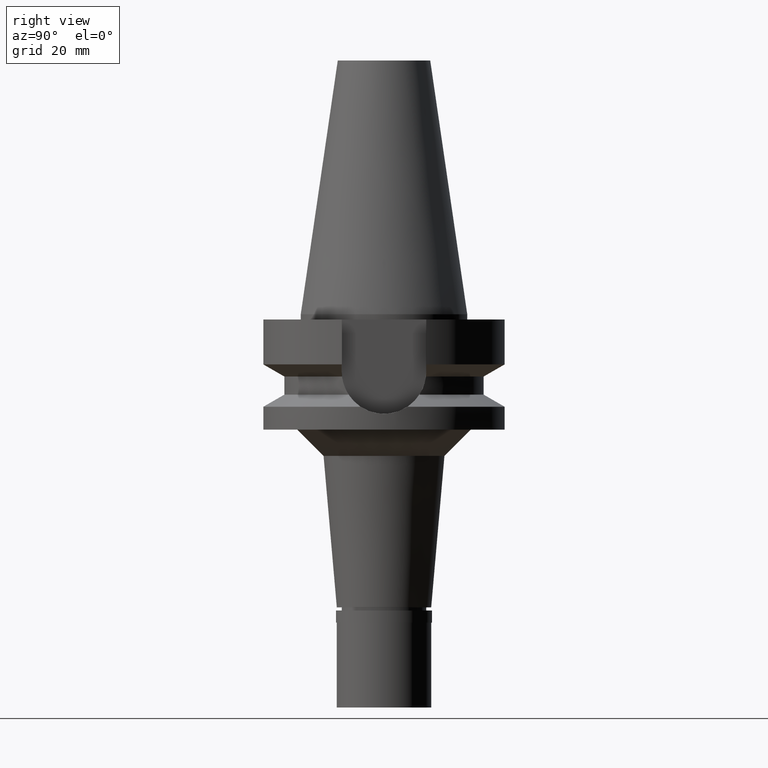
[diagram: clean part render]
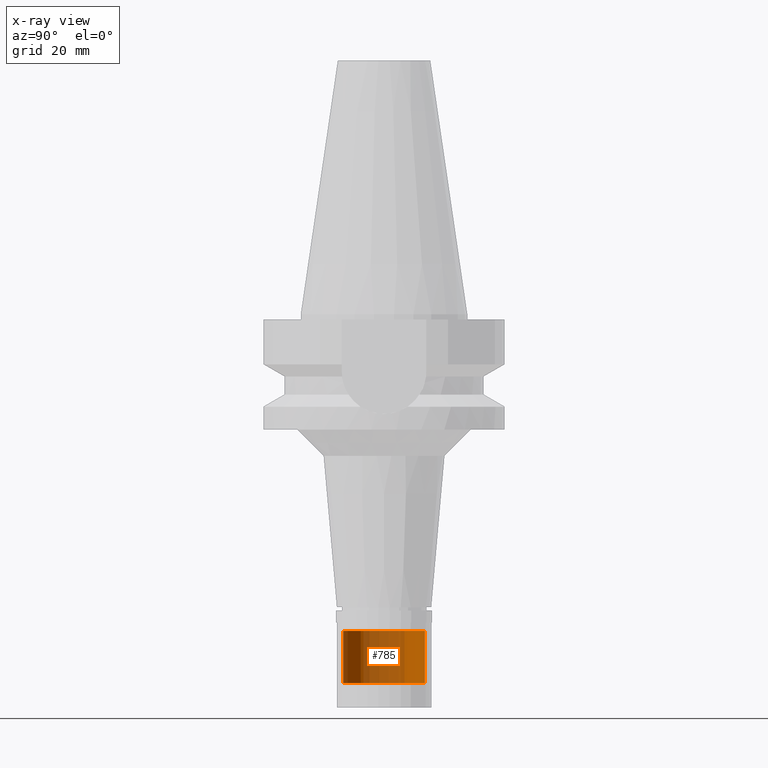
[diagram: x-ray — body ghosted, one internal face saturated and labeled with its STEP entity id]
A machine part, right view, then the same camera in x-ray: the body is ghosted and one INTERNAL B-rep face — a face not visible from any outside direction — is saturated and labeled: STEP entity #785.
In plain terms, the highlighted cylindrical surface (partial cylindrical patch) has radius 7.8 mm, axis along (0, 0, -1).
Its self-contained STEP definition (entity closure, byte-faithful):
#10 = ORIENTED_EDGE ( 'NONE', *, *, #879, .T. ) ;
#43 = CARTESIAN_POINT ( 'NONE',  ( 0.0000000000000000000, -7.799999999999999822, -70.40000000000000568 ) ) ;
#151 = CARTESIAN_POINT ( 'NONE',  ( 0.0000000000000000000, -7.799999999999999822, -60.40000000000000568 ) ) ;
#178 = LINE ( 'NONE', #410, #1087 ) ;
#318 = DIRECTION ( 'NONE',  ( 0.0000000000000000000, -1.000000000000000000, 0.0000000000000000000 ) ) ;
#345 = VERTEX_POINT ( 'NONE', #1421 ) ;
#359 = CARTESIAN_POINT ( 'NONE',  ( 0.0000000000000000000, 1.890119869803999835E-14, 54.33999999999999631 ) ) ;
#410 = CARTESIAN_POINT ( 'NONE',  ( 0.0000000000000000000, -7.799999999999999822, -60.40000000000000568 ) ) ;
#459 = DIRECTION ( 'NONE',  ( 0.0000000000000000000, 0.0000000000000000000, -1.000000000000000000 ) ) ;
#464 = DIRECTION ( 'NONE',  ( 0.0000000000000000000, 0.0000000000000000000, -1.000000000000000000 ) ) ;
#785 = ADVANCED_FACE ( 'NONE', ( #1498 ), #2404, .T. ) ;
#879 = EDGE_CURVE ( 'NONE', #1616, #2922, #2467, .T. ) ;
#893 = AXIS2_PLACEMENT_3D ( 'NONE', #359, #1742, #318 ) ;
#897 = AXIS2_PLACEMENT_3D ( 'NONE', #1843, #2081, #935 ) ;
#935 = DIRECTION ( 'NONE',  ( 0.0000000000000000000, 1.000000000000000000, 0.0000000000000000000 ) ) ;
#995 = CIRCLE ( 'NONE', #897, 7.799999999999999822 ) ;
#1087 = VECTOR ( 'NONE', #459, 1000.000000000000000 ) ;
#1113 = CARTESIAN_POINT ( 'NONE',  ( 0.0000000000000000000, 7.799999999999999822, -60.40000000000000568 ) ) ;
#1194 = EDGE_CURVE ( 'NONE', #345, #2552, #995, .T. ) ;
#1399 = ORIENTED_EDGE ( 'NONE', *, *, #1194, .T. ) ;
#1421 = CARTESIAN_POINT ( 'NONE',  ( 0.0000000000000000000, 7.799999999999999822, -70.40000000000000568 ) ) ;
#1498 = FACE_OUTER_BOUND ( 'NONE', #2747, .T. ) ;
#1616 = VERTEX_POINT ( 'NONE', #151 ) ;
#1625 = CARTESIAN_POINT ( 'NONE',  ( 0.0000000000000000000, 1.890119869803999835E-14, -60.40000000000000568 ) ) ;
#1742 = DIRECTION ( 'NONE',  ( 0.0000000000000000000, 0.0000000000000000000, -1.000000000000000000 ) ) ;
#1804 = CARTESIAN_POINT ( 'NONE',  ( 0.0000000000000000000, 7.799999999999999822, -60.40000000000000568 ) ) ;
#1843 = CARTESIAN_POINT ( 'NONE',  ( 0.0000000000000000000, 1.890119869803999835E-14, -70.40000000000000568 ) ) ;
#2058 = VECTOR ( 'NONE', #464, 1000.000000000000000 ) ;
#2081 = DIRECTION ( 'NONE',  ( 0.0000000000000000000, 0.0000000000000000000, 1.000000000000000000 ) ) ;
#2232 = ORIENTED_EDGE ( 'NONE', *, *, #2826, .F. ) ;
#2258 = DIRECTION ( 'NONE',  ( 0.0000000000000000000, 0.0000000000000000000, -1.000000000000000000 ) ) ;
#2341 = EDGE_CURVE ( 'NONE', #2922, #345, #2717, .T. ) ;
#2392 = ORIENTED_EDGE ( 'NONE', *, *, #2341, .T. ) ;
#2404 = CYLINDRICAL_SURFACE ( 'NONE', #893, 7.799999999999999822 ) ;
#2416 = AXIS2_PLACEMENT_3D ( 'NONE', #1625, #2258, #2829 ) ;
#2467 = CIRCLE ( 'NONE', #2416, 7.799999999999999822 ) ;
#2552 = VERTEX_POINT ( 'NONE', #43 ) ;
#2717 = LINE ( 'NONE', #1804, #2058 ) ;
#2747 = EDGE_LOOP ( 'NONE', ( #1399, #2232, #10, #2392 ) ) ;
#2826 = EDGE_CURVE ( 'NONE', #1616, #2552, #178, .T. ) ;
#2829 = DIRECTION ( 'NONE',  ( 0.0000000000000000000, -1.000000000000000000, 0.0000000000000000000 ) ) ;
#2922 = VERTEX_POINT ( 'NONE', #1113 ) ;